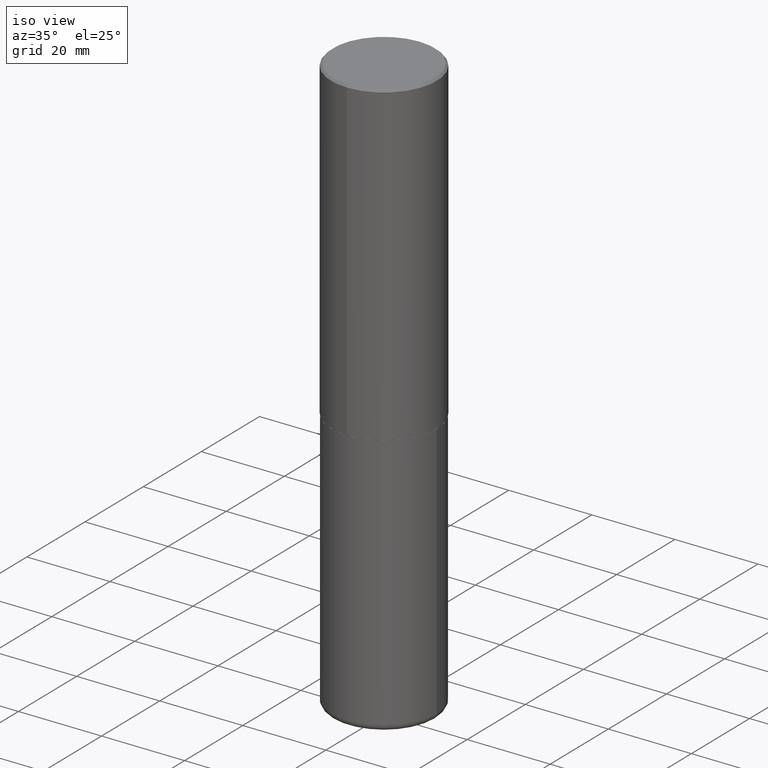
[diagram: clean part render]
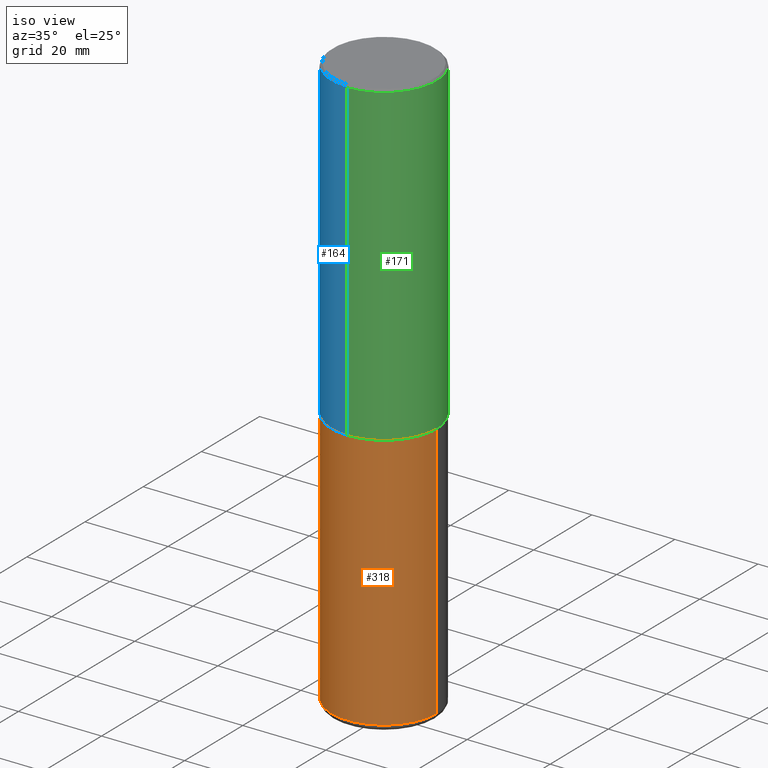
[diagram: same view with three faces highlighted in distinct colors, each labeled with its STEP entity id]
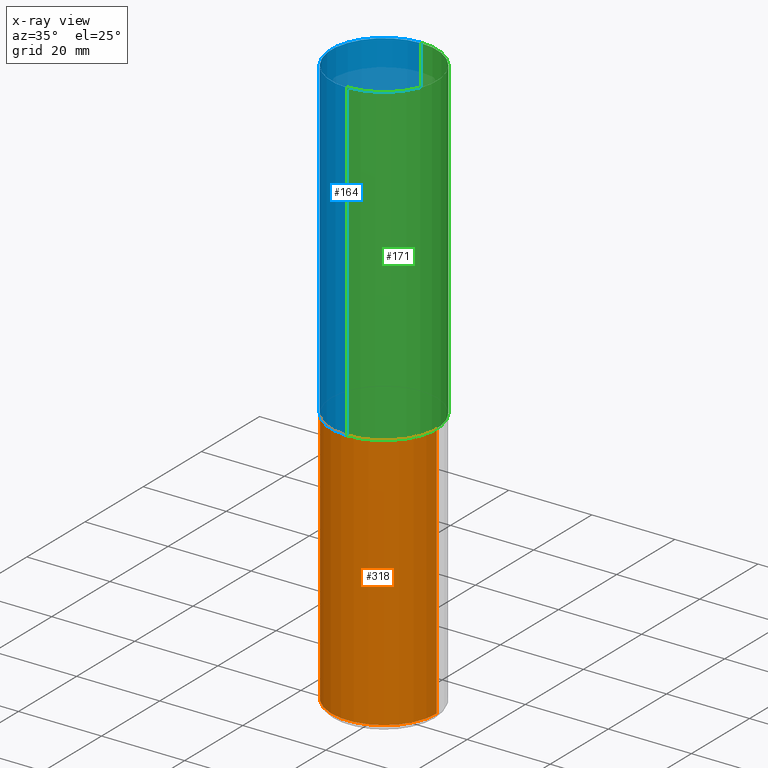
[diagram: x-ray of the same camera — body ghosted, the three highlighted faces saturated]
A machine part, iso view with three faces highlighted in distinct colors.
The next image is the same camera in x-ray (body ghosted, the three faces saturated) — at least one of them is partly hidden behind the body in this view.
Their STEP definitions:

[orange] entity #318 — the highlighted cylindrical surface (partial cylindrical patch) has radius 12.7 mm, axis along (-0, 0, 1).
#2 = DIRECTION ( 'NONE',  ( -2.445468806185136597E-29, 3.491481338843145583E-15, 1.000000000000000000 ) ) ;
#5 = DIRECTION ( 'NONE',  ( -2.445468806185136597E-29, 3.491481338843145583E-15, 1.000000000000000000 ) ) ;
#11 = VECTOR ( 'NONE', #307, 39.37007874015748143 ) ;
#31 = CARTESIAN_POINT ( 'NONE',  ( 1.330335030564714425E-28, -1.899365848330671298E-14, -5.439999999999999503 ) ) ;
#34 = CARTESIAN_POINT ( 'NONE',  ( 0.000000000000000000, 0.000000000000000000, 0.000000000000000000 ) ) ;
#37 = CARTESIAN_POINT ( 'NONE',  ( 7.336406418555408669E-29, -1.047444401652943478E-14, -2.999999999999999556 ) ) ;
#72 = DIRECTION ( 'NONE',  ( -2.445468806185136877E-29, 3.491481338843145188E-15, 1.000000000000000000 ) ) ;
#82 = AXIS2_PLACEMENT_3D ( 'NONE', #31, #137, #334 ) ;
#115 = CARTESIAN_POINT ( 'NONE',  ( -0.5000000000000000000, -1.118133757111757295E-14, -2.999999999999999556 ) ) ;
#125 = EDGE_CURVE ( 'NONE', #205, #305, #353, .T. ) ;
#137 = DIRECTION ( 'NONE',  ( -2.445468806185136597E-29, 3.491481338843145583E-15, 1.000000000000000000 ) ) ;
#162 = EDGE_LOOP ( 'NONE', ( #308, #269, #173, #408 ) ) ;
#163 = AXIS2_PLACEMENT_3D ( 'NONE', #37, #5, #268 ) ;
#166 = LINE ( 'NONE', #364, #197 ) ;
#167 = EDGE_CURVE ( 'NONE', #370, #205, #182, .T. ) ;
#173 = ORIENTED_EDGE ( 'NONE', *, *, #311, .T. ) ;
#182 = LINE ( 'NONE', #219, #11 ) ;
#197 = VECTOR ( 'NONE', #72, 39.37007874015748143 ) ;
#199 = CARTESIAN_POINT ( 'NONE',  ( 0.5000000000000002220, -2.248513982214985265E-14, -5.439999999999999503 ) ) ;
#205 = VERTEX_POINT ( 'NONE', #115 ) ;
#219 = CARTESIAN_POINT ( 'NONE',  ( -0.5000000000000000000, 3.552713678800500929E-15, -2.459467545127452891E-29 ) ) ;
#229 = CYLINDRICAL_SURFACE ( 'NONE', #310, 0.5000000000000000000 ) ;
#257 = CARTESIAN_POINT ( 'NONE',  ( 0.5000000000000000000, -1.396592535537256813E-14, -2.999999999999999556 ) ) ;
#268 = DIRECTION ( 'NONE',  ( 1.000000000000000000, -6.982962677686266711E-15, 0.000000000000000000 ) ) ;
#269 = ORIENTED_EDGE ( 'NONE', *, *, #294, .T. ) ;
#280 = CARTESIAN_POINT ( 'NONE',  ( -0.5000000000000002220, -1.544094480450621205E-14, -5.439999999999999503 ) ) ;
#294 = EDGE_CURVE ( 'NONE', #370, #350, #360, .T. ) ;
#295 = DIRECTION ( 'NONE',  ( 1.000000000000000000, -6.982962677686266711E-15, 4.876176775795935793E-29 ) ) ;
#305 = VERTEX_POINT ( 'NONE', #257 ) ;
#307 = DIRECTION ( 'NONE',  ( -2.445468806185136877E-29, 3.491481338843145188E-15, 1.000000000000000000 ) ) ;
#308 = ORIENTED_EDGE ( 'NONE', *, *, #167, .F. ) ;
#310 = AXIS2_PLACEMENT_3D ( 'NONE', #34, #2, #295 ) ;
#311 = EDGE_CURVE ( 'NONE', #350, #305, #166, .T. ) ;
#318 = ADVANCED_FACE ( 'NONE', ( #330 ), #229, .T. ) ;
#330 = FACE_OUTER_BOUND ( 'NONE', #162, .T. ) ;
#334 = DIRECTION ( 'NONE',  ( 1.000000000000000000, -6.982962677686269077E-15, 0.000000000000000000 ) ) ;
#350 = VERTEX_POINT ( 'NONE', #199 ) ;
#353 = CIRCLE ( 'NONE', #163, 0.5000000000000000000 ) ;
#360 = CIRCLE ( 'NONE', #82, 0.5000000000000001110 ) ;
#364 = CARTESIAN_POINT ( 'NONE',  ( 0.5000000000000000000, -3.491481338843133355E-15, 2.438088387897967896E-29 ) ) ;
#370 = VERTEX_POINT ( 'NONE', #280 ) ;
#408 = ORIENTED_EDGE ( 'NONE', *, *, #125, .F. ) ;

[blue] entity #164 — the highlighted cylindrical surface (partial cylindrical patch) has radius 12.7 mm, axis along (-0, 0, 1).
#3 = VECTOR ( 'NONE', #286, 39.37007874015748143 ) ;
#4 = ORIENTED_EDGE ( 'NONE', *, *, #26, .F. ) ;
#16 = CARTESIAN_POINT ( 'NONE',  ( -3.491481338843061963E-15, -0.5000000000000107692, -2.998999999999998778 ) ) ;
#21 = LINE ( 'NONE', #159, #3 ) ;
#26 = EDGE_CURVE ( 'NONE', #322, #49, #325, .T. ) ;
#29 = AXIS2_PLACEMENT_3D ( 'NONE', #323, #381, #288 ) ;
#49 = VERTEX_POINT ( 'NONE', #355 ) ;
#55 = DIRECTION ( 'NONE',  ( -2.446018302604025097E-29, 3.490694428695902798E-15, 1.000000000000000000 ) ) ;
#58 = CARTESIAN_POINT ( 'NONE',  ( 0.000000000000000000, 0.000000000000000000, 0.000000000000000000 ) ) ;
#59 = EDGE_LOOP ( 'NONE', ( #274, #186, #206, #4 ) ) ;
#60 = EDGE_CURVE ( 'NONE', #413, #322, #155, .T. ) ;
#92 = DIRECTION ( 'NONE',  ( -6.982962677686265922E-15, -1.000000000000000000, 3.491643216902136408E-15 ) ) ;
#95 = CARTESIAN_POINT ( 'NONE',  ( 3.552713678800501718E-15, 0.5000000000000001110, -1.745347214347951794E-15 ) ) ;
#100 = CARTESIAN_POINT ( 'NONE',  ( 3.552713678800539584E-15, 0.4999999999999898970, -2.999000000000001886 ) ) ;
#140 = AXIS2_PLACEMENT_3D ( 'NONE', #418, #378, #92 ) ;
#155 = LINE ( 'NONE', #95, #291 ) ;
#159 = CARTESIAN_POINT ( 'NONE',  ( -3.491481338843133750E-15, -0.5000000000000001110, 1.745347214347951794E-15 ) ) ;
#164 = ADVANCED_FACE ( 'NONE', ( #244 ), #222, .T. ) ;
#174 = EDGE_CURVE ( 'NONE', #245, #49, #21, .T. ) ;
#186 = ORIENTED_EDGE ( 'NONE', *, *, #256, .T. ) ;
#187 = DIRECTION ( 'NONE',  ( -6.982962677686265922E-15, -1.000000000000000000, 3.490694428695902798E-15 ) ) ;
#189 = AXIS2_PLACEMENT_3D ( 'NONE', #58, #377, #187 ) ;
#206 = ORIENTED_EDGE ( 'NONE', *, *, #174, .T. ) ;
#222 = CYLINDRICAL_SURFACE ( 'NONE', #189, 0.5000000000000001110 ) ;
#244 = FACE_OUTER_BOUND ( 'NONE', #59, .T. ) ;
#245 = VERTEX_POINT ( 'NONE', #16 ) ;
#255 = CIRCLE ( 'NONE', #29, 0.5000000000000003331 ) ;
#256 = EDGE_CURVE ( 'NONE', #413, #245, #255, .T. ) ;
#261 = CARTESIAN_POINT ( 'NONE',  ( 3.491481338843133355E-15, 0.4999999999999999445, -0.02000000000000185310 ) ) ;
#274 = ORIENTED_EDGE ( 'NONE', *, *, #60, .F. ) ;
#286 = DIRECTION ( 'NONE',  ( -2.446018302604025097E-29, 3.490694428695902798E-15, 1.000000000000000000 ) ) ;
#288 = DIRECTION ( 'NONE',  ( -6.982962677686265922E-15, -1.000000000000000000, 3.278217592397113496E-15 ) ) ;
#291 = VECTOR ( 'NONE', #55, 39.37007874015748143 ) ;
#322 = VERTEX_POINT ( 'NONE', #261 ) ;
#323 = CARTESIAN_POINT ( 'NONE',  ( 7.335608889509473609E-29, -1.046859259165901344E-14, -2.999000000000000554 ) ) ;
#325 = CIRCLE ( 'NONE', #140, 0.5000000000000000000 ) ;
#355 = CARTESIAN_POINT ( 'NONE',  ( -3.430248998885764992E-15, -0.5000000000000001110, -0.01999999999999835937 ) ) ;
#377 = DIRECTION ( 'NONE',  ( -2.446018302604025378E-29, 3.490694428695902798E-15, 1.000000000000000000 ) ) ;
#378 = DIRECTION ( 'NONE',  ( -2.446018302604025378E-29, 3.490694428695902798E-15, 1.000000000000000000 ) ) ;
#381 = DIRECTION ( 'NONE',  ( -2.446018302604025378E-29, 3.490694428695902798E-15, 1.000000000000000000 ) ) ;
#413 = VERTEX_POINT ( 'NONE', #100 ) ;
#418 = CARTESIAN_POINT ( 'NONE',  ( 4.892036605208077240E-31, -6.981388857391842821E-17, -0.02000000000000010797 ) ) ;

[green] entity #171 — the highlighted cylindrical surface (partial cylindrical patch) has radius 12.7 mm, axis along (-0, 0, 1).
#3 = VECTOR ( 'NONE', #286, 39.37007874015748143 ) ;
#13 = CYLINDRICAL_SURFACE ( 'NONE', #332, 0.5000000000000001110 ) ;
#16 = CARTESIAN_POINT ( 'NONE',  ( -3.491481338843061963E-15, -0.5000000000000107692, -2.998999999999998778 ) ) ;
#21 = LINE ( 'NONE', #159, #3 ) ;
#41 = DIRECTION ( 'NONE',  ( -2.446018302604025378E-29, 3.490694428695902798E-15, 1.000000000000000000 ) ) ;
#42 = CIRCLE ( 'NONE', #285, 0.5000000000000003331 ) ;
#49 = VERTEX_POINT ( 'NONE', #355 ) ;
#52 = DIRECTION ( 'NONE',  ( -6.982962677686265922E-15, -1.000000000000000000, 3.491643216902136408E-15 ) ) ;
#55 = DIRECTION ( 'NONE',  ( -2.446018302604025097E-29, 3.490694428695902798E-15, 1.000000000000000000 ) ) ;
#60 = EDGE_CURVE ( 'NONE', #413, #322, #155, .T. ) ;
#62 = AXIS2_PLACEMENT_3D ( 'NONE', #208, #41, #52 ) ;
#64 = ORIENTED_EDGE ( 'NONE', *, *, #143, .T. ) ;
#80 = DIRECTION ( 'NONE',  ( -2.446018302604025378E-29, 3.490694428695902798E-15, 1.000000000000000000 ) ) ;
#95 = CARTESIAN_POINT ( 'NONE',  ( 3.552713678800501718E-15, 0.5000000000000001110, -1.745347214347951794E-15 ) ) ;
#100 = CARTESIAN_POINT ( 'NONE',  ( 3.552713678800539584E-15, 0.4999999999999898970, -2.999000000000001886 ) ) ;
#116 = EDGE_LOOP ( 'NONE', ( #64, #203, #120, #236 ) ) ;
#120 = ORIENTED_EDGE ( 'NONE', *, *, #195, .F. ) ;
#143 = EDGE_CURVE ( 'NONE', #245, #413, #42, .T. ) ;
#155 = LINE ( 'NONE', #95, #291 ) ;
#159 = CARTESIAN_POINT ( 'NONE',  ( -3.491481338843133750E-15, -0.5000000000000001110, 1.745347214347951794E-15 ) ) ;
#171 = ADVANCED_FACE ( 'NONE', ( #412 ), #13, .T. ) ;
#174 = EDGE_CURVE ( 'NONE', #245, #49, #21, .T. ) ;
#195 = EDGE_CURVE ( 'NONE', #49, #322, #238, .T. ) ;
#203 = ORIENTED_EDGE ( 'NONE', *, *, #60, .T. ) ;
#207 = DIRECTION ( 'NONE',  ( -6.982962677686265922E-15, -1.000000000000000000, 3.278217592397113496E-15 ) ) ;
#208 = CARTESIAN_POINT ( 'NONE',  ( 4.892036605208077240E-31, -6.981388857391842821E-17, -0.02000000000000010797 ) ) ;
#236 = ORIENTED_EDGE ( 'NONE', *, *, #174, .F. ) ;
#238 = CIRCLE ( 'NONE', #62, 0.5000000000000000000 ) ;
#245 = VERTEX_POINT ( 'NONE', #16 ) ;
#261 = CARTESIAN_POINT ( 'NONE',  ( 3.491481338843133355E-15, 0.4999999999999999445, -0.02000000000000185310 ) ) ;
#285 = AXIS2_PLACEMENT_3D ( 'NONE', #303, #80, #207 ) ;
#286 = DIRECTION ( 'NONE',  ( -2.446018302604025097E-29, 3.490694428695902798E-15, 1.000000000000000000 ) ) ;
#291 = VECTOR ( 'NONE', #55, 39.37007874015748143 ) ;
#303 = CARTESIAN_POINT ( 'NONE',  ( 7.335608889509473609E-29, -1.046859259165901344E-14, -2.999000000000000554 ) ) ;
#313 = DIRECTION ( 'NONE',  ( -6.982962677686265922E-15, -1.000000000000000000, 3.490694428695902798E-15 ) ) ;
#316 = DIRECTION ( 'NONE',  ( -2.446018302604025378E-29, 3.490694428695902798E-15, 1.000000000000000000 ) ) ;
#322 = VERTEX_POINT ( 'NONE', #261 ) ;
#332 = AXIS2_PLACEMENT_3D ( 'NONE', #354, #316, #313 ) ;
#354 = CARTESIAN_POINT ( 'NONE',  ( 0.000000000000000000, 0.000000000000000000, 0.000000000000000000 ) ) ;
#355 = CARTESIAN_POINT ( 'NONE',  ( -3.430248998885764992E-15, -0.5000000000000001110, -0.01999999999999835937 ) ) ;
#412 = FACE_OUTER_BOUND ( 'NONE', #116, .T. ) ;
#413 = VERTEX_POINT ( 'NONE', #100 ) ;